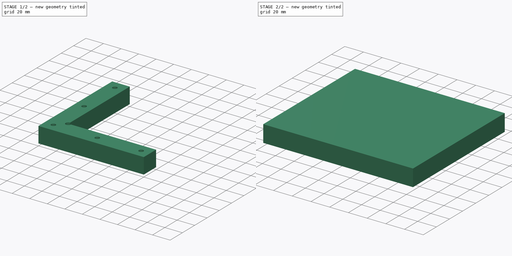
[diagram: build sequence overview — one tinted view per stage of 2, left to right]
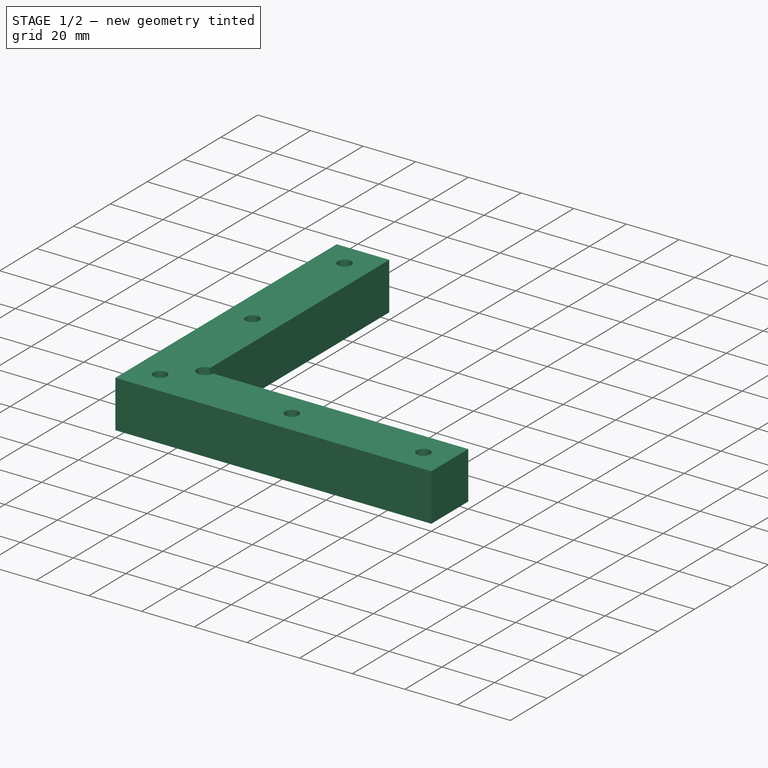
[diagram: stage 1 of 2 — iso view after this stage's code; geometry added in this stage tinted green]
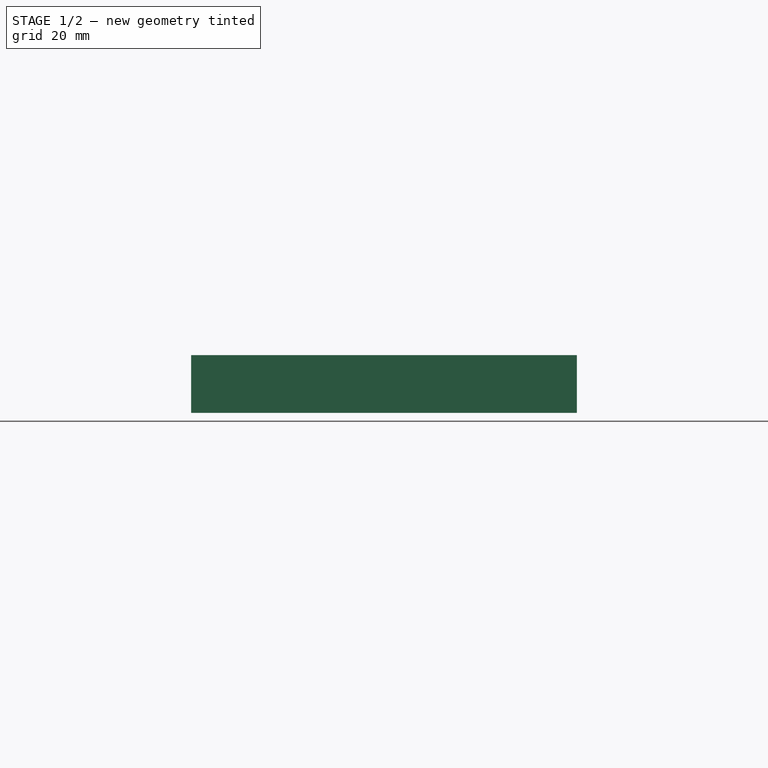
[diagram: stage 1 of 2 — front view after this stage's code; geometry added in this stage tinted green]
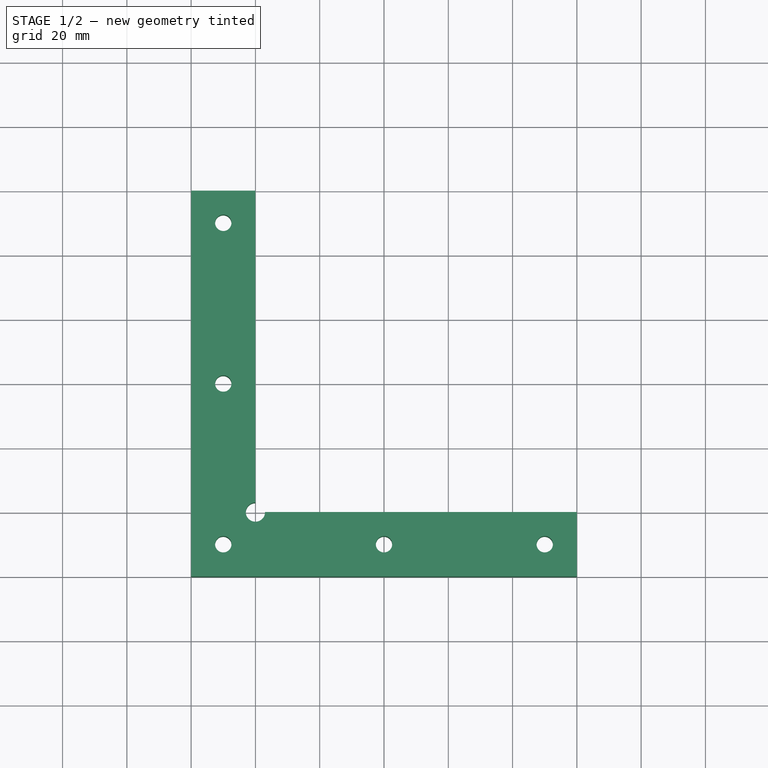
[diagram: stage 1 of 2 — top view after this stage's code; geometry added in this stage tinted green]
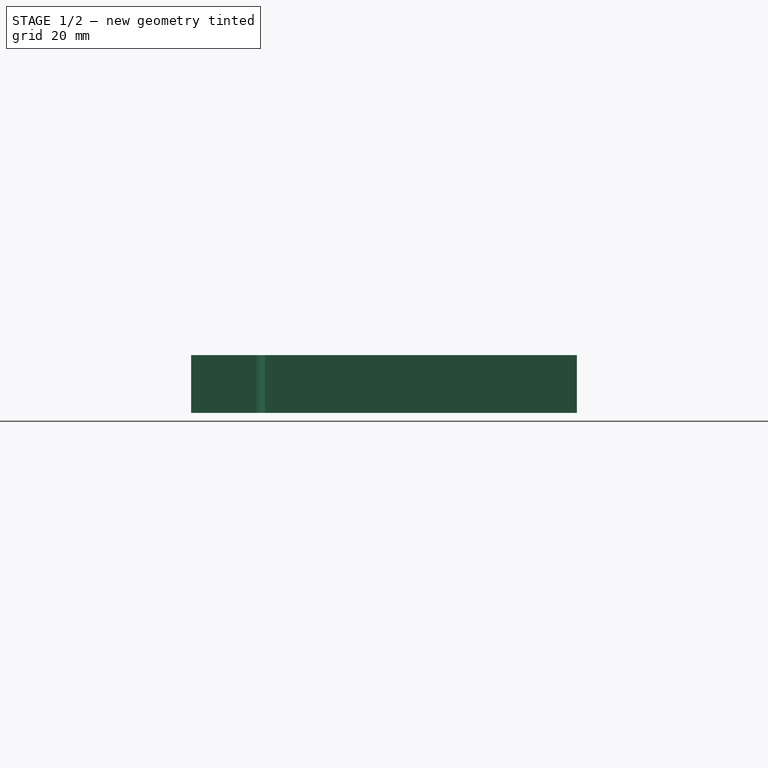
[diagram: stage 1 of 2 — right view after this stage's code; geometry added in this stage tinted green]
FCSTD DOCUMENT  (FreeCAD 0.19R20406 (Git))
Label: HoldingSquare
License: All rights reserved
LicenseURL: http://en.wikipedia.org/wiki/All_rights_reserved
objects: Path::FeaturePython×5, Part::FeaturePython×3, Sketcher::SketchObject×1, PartDesign::Pad×1, PartDesign::Body×1, App::FeaturePython×1, App::DocumentObjectGroup×1, Path::FeatureCompoundPython×1
note: 8 computed .brp shape members not serialized (recipe doc carries the construction recipe); baked Part::Feature solids carry a one-line shape summary decoded from their .brp

FEATURE [Sketcher::SketchObject] Sketch
  MapMode = 5
  Support = -> [XY_Plane]
  sketch-geometry (24):
    g0: LineSegment StartX=0 StartY=120 StartZ=0 EndX=20 EndY=120 EndZ=0
    g1: LineSegment [constr] StartX=20 StartY=120 StartZ=0 EndX=20 EndY=20 EndZ=0
    g2: LineSegment [constr] StartX=20 StartY=20 StartZ=0 EndX=120 EndY=20 EndZ=0
    g3: LineSegment StartX=120 StartY=20 StartZ=0 EndX=120 EndY=0 EndZ=0
    g4: LineSegment StartX=120 StartY=0 StartZ=0 EndX=0 EndY=0 EndZ=0
    g5: LineSegment StartX=0 StartY=0 StartZ=0 EndX=0 EndY=120 EndZ=0
    g6: Circle CenterX=10 CenterY=10 CenterZ=0 NormalX=0 NormalY=0 NormalZ=1 AngleXU=0 Radius=2.55
    g7: Circle CenterX=110 CenterY=10 CenterZ=0 NormalX=0 NormalY=0 NormalZ=1 AngleXU=0 Radius=2.55
    g8: Circle CenterX=10 CenterY=110 CenterZ=0 NormalX=0 NormalY=0 NormalZ=1 AngleXU=0 Radius=2.55
    g9: Circle CenterX=10 CenterY=60 CenterZ=0 NormalX=0 NormalY=0 NormalZ=1 AngleXU=0 Radius=2.55
    g10: Circle CenterX=60 CenterY=10 CenterZ=0 NormalX=0 NormalY=0 NormalZ=1 AngleXU=0 Radius=2.55
    g11: LineSegment [constr] StartX=10 StartY=10 StartZ=0 EndX=10 EndY=60 EndZ=0
    g12: LineSegment [constr] StartX=10 StartY=110 StartZ=0 EndX=10 EndY=60 EndZ=0
    g13: LineSegment [constr] StartX=10 StartY=10 StartZ=0 EndX=60 EndY=10 EndZ=0
    g14: LineSegment [constr] StartX=110 StartY=10 StartZ=0 EndX=60 EndY=10 EndZ=0
    g15: LineSegment [constr] StartX=10 StartY=110 StartZ=0 EndX=20 EndY=110 EndZ=0
    g16: LineSegment [constr] StartX=10 StartY=110 StartZ=0 EndX=0 EndY=110 EndZ=0
    g17: LineSegment [constr] StartX=110 StartY=10 StartZ=0 EndX=110 EndY=20 EndZ=0
    g18: LineSegment [constr] StartX=110 StartY=10 StartZ=0 EndX=110 EndY=0 EndZ=0
    g19: LineSegment [constr] StartX=10 StartY=110 StartZ=0 EndX=10 EndY=120 EndZ=0
    g20: LineSegment [constr] StartX=110 StartY=10 StartZ=0 EndX=120 EndY=10 EndZ=0
    g21: LineSegment StartX=20 StartY=120 StartZ=0 EndX=20 EndY=23 EndZ=0
    g22: LineSegment StartX=120 StartY=20 StartZ=0 EndX=23 EndY=20 EndZ=0
    g23: ArcOfCircle CenterX=20 CenterY=20 CenterZ=0 NormalX=0 NormalY=0 NormalZ=1 AngleXU=0 Radius=3 StartAngle=1.5708 EndAngle=6.28319
  constraints (66):
    c: Horizontal(g0)
    c: Coincident(g0,g1)
    c: Vertical(g1)
    c: Coincident(g1,g2)
    c: Horizontal(g2)
    c: Coincident(g2,g3)
    c: PointOnObject(g3,g-1)
    c: Vertical(g3)
    c: Coincident(g3,g4)
    c: Coincident(g4,g-1)
    c: Coincident(g4,g5)
    c: Coincident(g5,g0)
    c: Vertical(g5)
    c: Equal(g0,g3)
    c: Equal(g5,g4)
    c: Coincident(g11,g6)
    c: Coincident(g11,g9)
    c: Vertical(g11)
    c: Coincident(g12,g8)
    c: Coincident(g12,g9)
    c: Vertical(g12)
    c: Coincident(g13,g10)
    c: Horizontal(g13)
    c: Coincident(g14,g7)
    c: Coincident(g14,g10)
    c: Horizontal(g14)
    c: Coincident(g15,g8)
    c: PointOnObject(g15,g1)
    c: Horizontal(g15)
    c: Coincident(g16,g8)
    c: PointOnObject(g16,g5)
    c: Horizontal(g16)
    c: Coincident(g17,g7)
    c: PointOnObject(g17,g2)
    c: Vertical(g17)
    c: Coincident(g18,g7)
    c: PointOnObject(g18,g4)
    c: Vertical(g18)
    c: Equal(g18,g17)
    c: Equal(g16,g15)
    c: Coincident(g19,g8)
    c: PointOnObject(g19,g0)
    c: Vertical(g19)
    c: Coincident(g20,g7)
    c: Horizontal(g20)
    c: Equal(g20,g17)
    c: Equal(g19,g16)
    c: Coincident(g13,g6)
    c: Equal(g7,g10)
    c: Equal(g6,g10)
    c: Equal(g6,g9)
    c: Equal(g9,g8)
    c: Equal(g13,g14)
    c: Equal(g13,g11)
    c: Equal(g13,g12)
    c: DistanceY(g11,g11) = 50
    c: DistanceX(g0,g0) = 20
    c: Diameter(g10) = 5.1
    c: Coincident(g21,g0)
    c: PointOnObject(g21,g1)
    c: Coincident(g22,g3)
    c: PointOnObject(g22,g2)
    c: Coincident(g23,g1)
    c: Coincident(g23,g21)
    c: Coincident(g23,g22)
    c: Radius(g23) = 3
FEATURE [PartDesign::Pad] Pad
  Length = 18
  Length2 = 100
  Profile = -> Sketch
  Type = 0
FEATURE [PartDesign::Body] Body
  Group = -> [Sketch,Pad]
  Origin = -> Origin
  Tip = -> Pad
FEATURE [Part::FeaturePython] Clone  label="Body_CNC"  # Draft clone (typed FeaturePython)
  AttacherType = Attacher::AttachEngine3D
  Fuse = false
  Objects = -> [Body]
  Scale = (1,1,1)
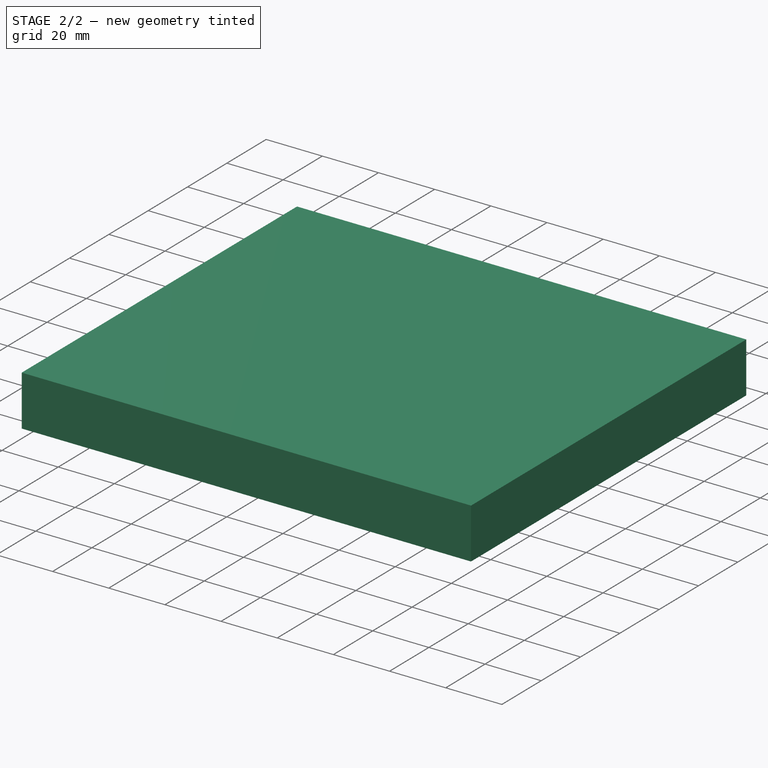
[diagram: stage 2 of 2 — iso view after this stage's code; geometry added in this stage tinted green]
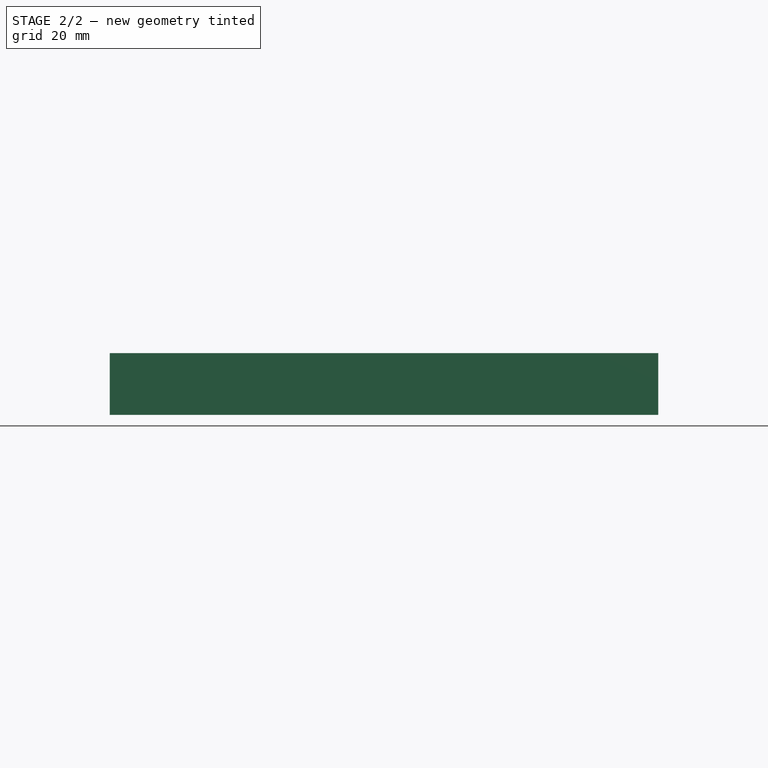
[diagram: stage 2 of 2 — front view after this stage's code; geometry added in this stage tinted green]
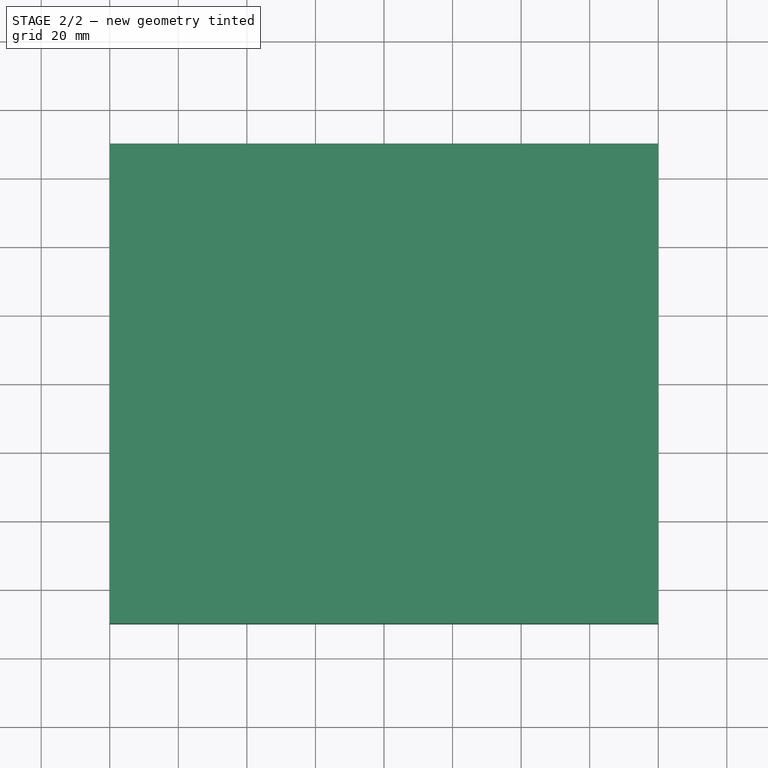
[diagram: stage 2 of 2 — top view after this stage's code; geometry added in this stage tinted green]
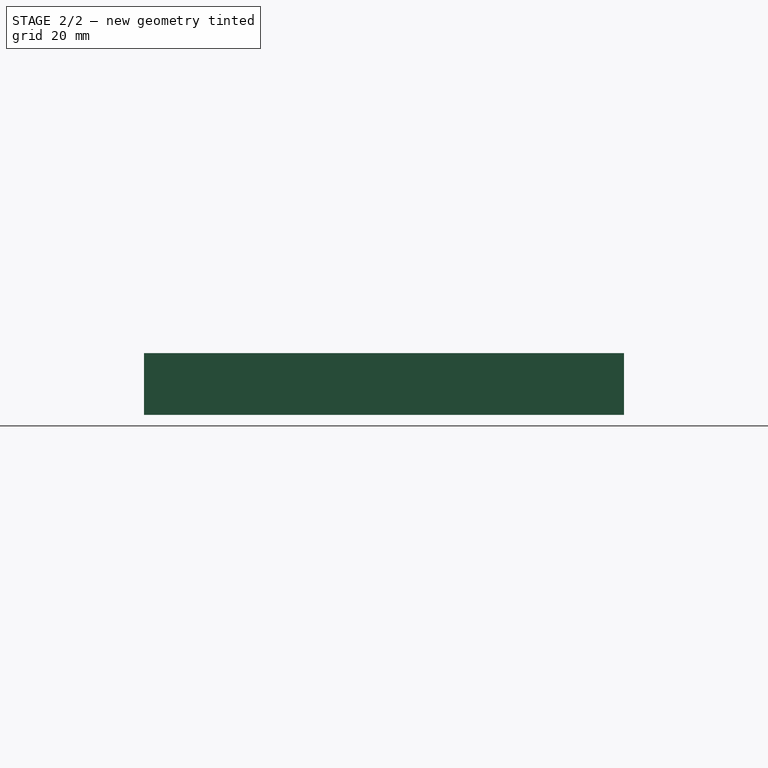
[diagram: stage 2 of 2 — right view after this stage's code; geometry added in this stage tinted green]
FEATURE [App::FeaturePython] SetupSheet  # Path/CAM operation (typed FeaturePython)
  ClearanceHeightExpression = OpStockZMax+SetupSheet.ClearanceHeightOffset
  ClearanceHeightOffset = 5
  CoolantMode = 1
  CoolantModes = None | Flood | Mist
  FinalDepthExpression = OpFinalDepth
  HorizRapid = 66.67
  SafeHeightExpression = OpStockZMax+SetupSheet.SafeHeightOffset
  SafeHeightOffset = 3
  StartDepthExpression = OpStartDepth
  StepDownExpression = OpToolDiameter
  VertRapid = 0.56
FEATURE [Part::FeaturePython] Clone001  label="Model-Body_CNC"  # Draft clone (typed FeaturePython)
  AttacherType = Attacher::AttachEngine3D
  Fuse = false
  Objects = -> [Clone]
  PathResource = Model
  Scale = (1,1,1)
FEATURE [App::DocumentObjectGroup] Model
  Group = -> [Clone001]
FEATURE [Path::FeaturePython] T6__2FluteWoodMill001  label="T6: 2FluteWoodMill001"  # Path/CAM operation (typed FeaturePython)
  HorizFeed = 33.33
  HorizRapid = 66.67
  SpindleDir = 0
  SpindleSpeed = 12000
  ToolNumber = 6
  VertFeed = 16.66
  VertRapid = 0.56
  expr: HorizRapid = SetupSheet.HorizRapid
  expr: VertRapid = SetupSheet.VertRapid
FEATURE [Part::FeaturePython] Stock  # WARN: FeaturePython — macro-defined, semantics opaque (R4)
  Base = -> Model
  ExtXneg = 20
  ExtXpos = 20
  ExtYneg = 10
  ExtYpos = 10
  ExtZneg = 0
  ExtZpos = 0
  StockType = FromBase
FEATURE [Path::FeaturePython] Helix  # Path/CAM operation (typed FeaturePython)
  Active = true
  Base = -> [Clone001]
  ClearanceHeight = 23
  CoolantMode = None
  Direction = 0
  EnableRotation = 0
  FinalDepth = -0.2
  OpFinalDepth = 0
  OpStartDepth = 18
  OpStockZMax = 18
  OpStockZMin = 0
  OpToolDiameter = 3
  SafeHeight = 21
  StartDepth = 18
  StartRadius = 0
  StartSide = 0
  StepDown = 0.5
  StepOver = 100
  ToolController = -> T6__2FluteWoodMill001
  expr: ClearanceHeight = OpStockZMax + SetupSheet.ClearanceHeightOffset
  expr: SafeHeight = OpStockZMax + SetupSheet.SafeHeightOffset
FEATURE [Path::FeaturePython] Contour  # Path/CAM operation (typed FeaturePython)
  Active = true
  AreaParams:
    Tolerance = 1e-07
    FitArcs = True
    Simplify = False
    CleanDistance = 0.0
    Accuracy = 0.01
    Unit = 1.0
    MinArcPoints = 4
    MaxArcPoints = 100
    ClipperScale = 10000000.0
    Fill = 0
    Coplanar = 2
    Reorient = True
    Outline = False
    Explode = False
    OpenMode = 0
    Deflection = 0.01
    SubjectFill = 0
    ClipFill = 0
    Offset = 1.5
    ExtraPass = 0
    Stepover = 0.0
    LastStepover = 0.0
    JoinType = 0
    EndType = 0
    MiterLimit = 2.0
    RoundPrecision = 0.0
    PocketMode = 0
    ToolRadius = 1.0
    PocketExtraOffset = 0.0
    PocketStepover = 0.0
    PocketLastStepover = 0.0
    FromCenter = False
    Angle = 45.0
    AngleShift = 0.0
    Shift = 0.0
    Thicken = False
    SectionCount = -1
    Stepdown = 1.0
    SectionOffset = 0.0
    SectionTolerance = 1e-06
    SectionMode = 2
    Project = False
  ClearanceHeight = 23
  CoolantMode = None
  Direction = 1
  EnableRotation = 0
  FinalDepth = -0.2
  JoinType = 0
  MiterLimit = 0.1
  OffsetExtra = 0
  OpFinalDepth = 0
  OpStartDepth = 18
  OpStockZMax = 18
  OpStockZMin = 0
  OpToolDiameter = 3
  PathParams = {'orientation': 0, 'feedrate': 33.33, 'feedrate_v': 16.66, 'verbose': True, 'resume_height': 21.0, 'retraction': 23.0, 'return_end': True, 'preamble': False}
  SafeHeight = 21
  Side = 0
  StartDepth = 18
  StartPoint = (0,0,0)
  StepDown = 0.5
  ToolController = -> T6__2FluteWoodMill001
  UseComp = true
  UseStartPoint = false
  expr: ClearanceHeight = OpStockZMax + SetupSheet.ClearanceHeightOffset
  expr: SafeHeight = OpStockZMax + SetupSheet.SafeHeightOffset
  expr: CoolantMode = None
  expr: StepDown = 0.5mm
  expr: FinalDepth = -0.2mm
  expr: StartDepth = OpStartDepth
FEATURE [Path::FeaturePython] DressupTag  # Path/CAM operation (typed FeaturePython)
  Angle = 45
  Base = -> Contour
  Disabled = [3]
  Height = 9.1
  Positions = (7) [(8.76,121.5,-0.199999),(-1.5,60,-0.199999),(60,-1.5,-0.199999),(120,-1.5,-0.199999),(121.5,9.27,-0.199999),(71.5,21.5,-0.199999),(21.5,71.5,-0.199999)]
  Radius = 0
  SegmentationFactor = 50
  Width = 12
FEATURE [Path::FeatureCompoundPython] Operations  # Path/CAM operation (typed FeaturePython)
  Group = -> [DressupTag,Helix]
  UsePlacements = false
FEATURE [Path::FeaturePython] Job  # Path/CAM operation (typed FeaturePython)
  Fixtures = G54
  GeometryTolerance = 0.01
  Model = -> Model
  Operations = -> Operations
  OrderOutputBy = 2
  PostProcessor = 1
  PostProcessorArgs = --precision 4
  PostProcessorOutputFile = gcode/holding_square_120mm.nc
  SetupSheet = -> SetupSheet
  SplitOutput = false
  Stock = -> Stock
  ToolController = -> [T6__2FluteWoodMill001]
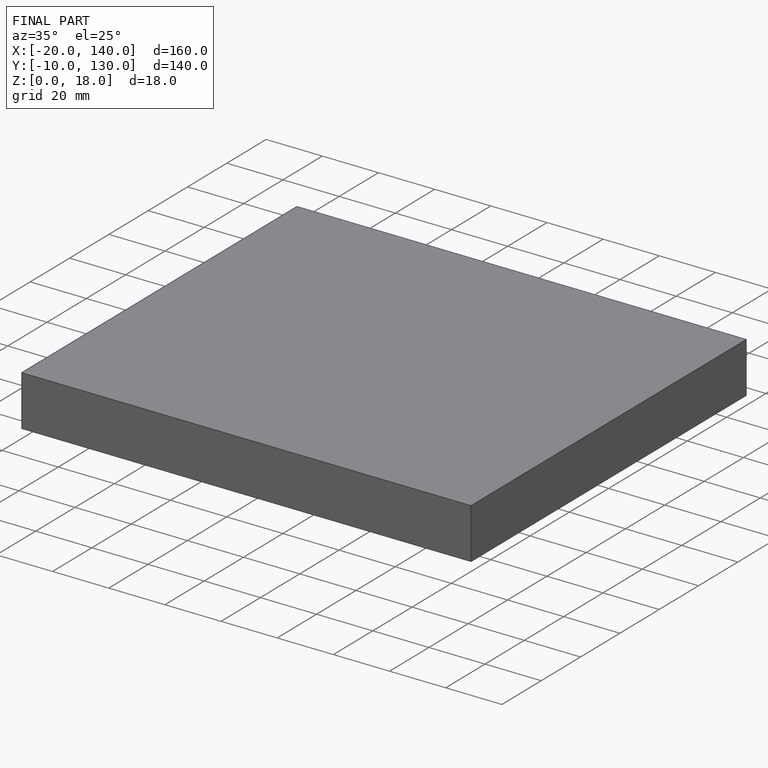
[diagram: finished part — iso view with bounding-box wireframe]
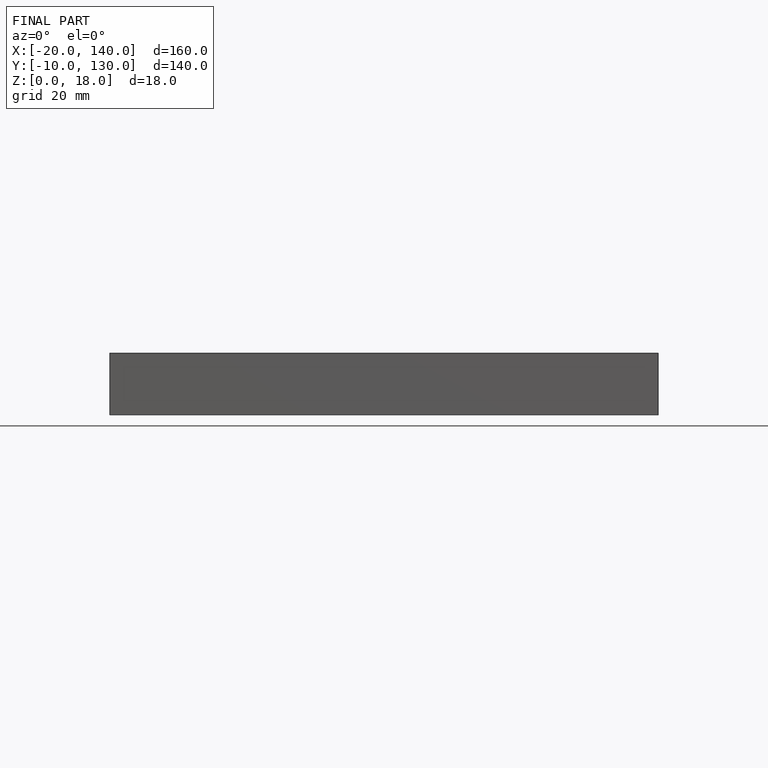
[diagram: finished part — front view with bounding-box wireframe]
